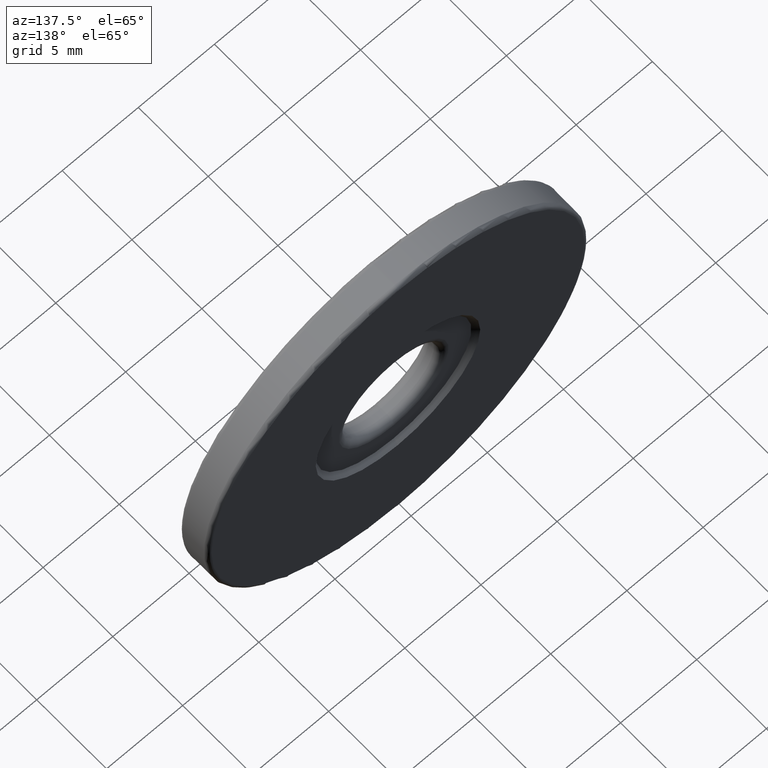
[diagram: clean part render]
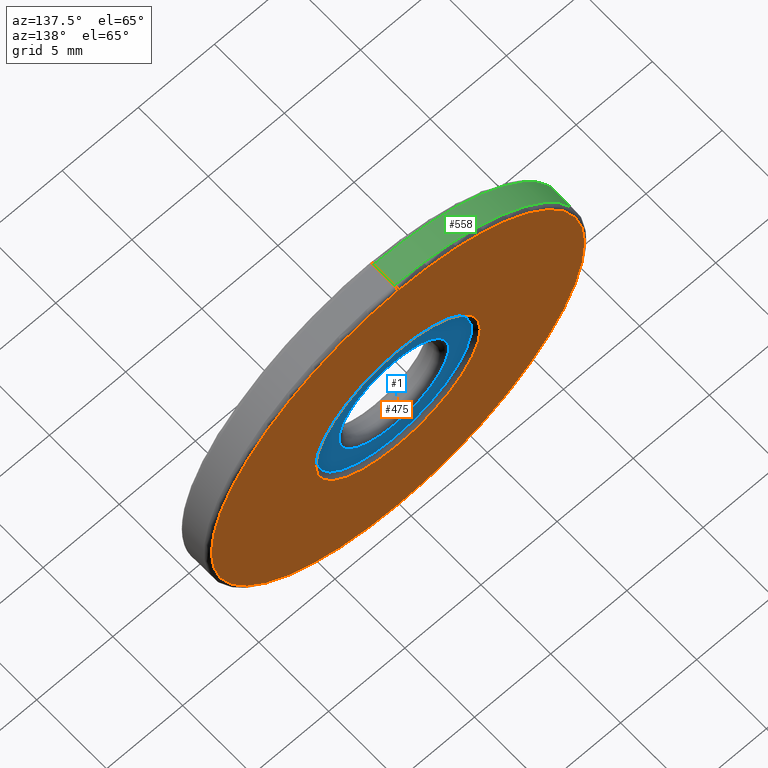
[diagram: same view with three faces highlighted in distinct colors, each labeled with its STEP entity id]
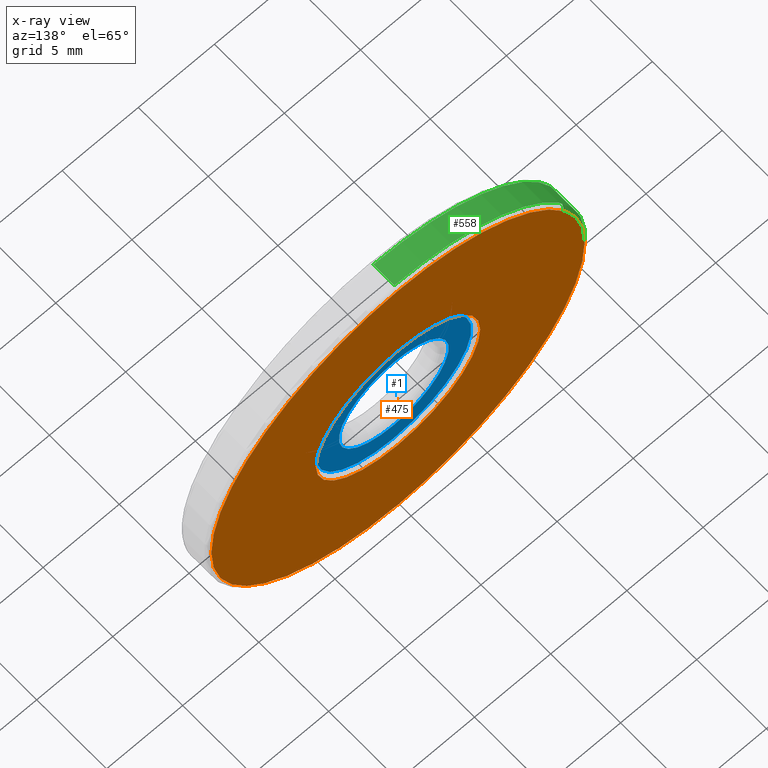
[diagram: x-ray of the same camera — body ghosted, the three highlighted faces saturated]
A machine part, auxiliary view with three faces highlighted in distinct colors.
The next image is the same camera in x-ray (body ghosted, the three faces saturated) — at least one of them is partly hidden behind the body in this view.
Their STEP definitions:

[orange] entity #475 — the highlighted planar face has unit normal (0, 1, 0).
#4 = AXIS2_PLACEMENT_3D ( 'NONE', #418, #551, #172 ) ;
#9 = FACE_BOUND ( 'NONE', #506, .T. ) ;
#13 = AXIS2_PLACEMENT_3D ( 'NONE', #128, #571, #295 ) ;
#26 = CARTESIAN_POINT ( 'NONE',  ( -4.682026255059963837, -0.5949759769982747581, 19.60000000000000142 ) ) ;
#78 = ORIENTED_EDGE ( 'NONE', *, *, #124, .T. ) ;
#79 = ORIENTED_EDGE ( 'NONE', *, *, #489, .T. ) ;
#103 = CARTESIAN_POINT ( 'NONE',  ( -4.682026255059964726, -0.5949759769982747581, 25.00000000000000000 ) ) ;
#124 = EDGE_CURVE ( 'NONE', #158, #284, #492, .T. ) ;
#128 = CARTESIAN_POINT ( 'NONE',  ( -4.682026255059964726, -0.5949759769982747581, 25.00000000000000000 ) ) ;
#151 = DIRECTION ( 'NONE',  ( -0.0000000000000000000, -1.000000000000000000, -0.0000000000000000000 ) ) ;
#158 = VERTEX_POINT ( 'NONE', #26 ) ;
#172 = DIRECTION ( 'NONE',  ( 0.0000000000000000000, -0.0000000000000000000, 1.000000000000000000 ) ) ;
#194 = PLANE ( 'NONE',  #4 ) ;
#200 = CARTESIAN_POINT ( 'NONE',  ( -4.682026255059962949, -0.5949759769982747581, 12.75000000000000178 ) ) ;
#210 = AXIS2_PLACEMENT_3D ( 'NONE', #471, #374, #464 ) ;
#231 = ORIENTED_EDGE ( 'NONE', *, *, #582, .T. ) ;
#284 = VERTEX_POINT ( 'NONE', #441 ) ;
#295 = DIRECTION ( 'NONE',  ( 0.0000000000000000000, 0.0000000000000000000, 1.000000000000000000 ) ) ;
#333 = AXIS2_PLACEMENT_3D ( 'NONE', #103, #151, #586 ) ;
#345 = AXIS2_PLACEMENT_3D ( 'NONE', #606, #453, #505 ) ;
#351 = CIRCLE ( 'NONE', #345, 12.25000000000000355 ) ;
#374 = DIRECTION ( 'NONE',  ( -0.0000000000000000000, -1.000000000000000000, -0.0000000000000000000 ) ) ;
#418 = CARTESIAN_POINT ( 'NONE',  ( -4.682026255059964726, -0.5949759769982747581, 25.00000000000000000 ) ) ;
#425 = EDGE_CURVE ( 'NONE', #502, #599, #548, .T. ) ;
#432 = FACE_OUTER_BOUND ( 'NONE', #465, .T. ) ;
#441 = CARTESIAN_POINT ( 'NONE',  ( -4.682026255059964726, -0.5949759769982747581, 30.39999999999999858 ) ) ;
#445 = CIRCLE ( 'NONE', #210, 5.399999999999998579 ) ;
#453 = DIRECTION ( 'NONE',  ( 0.0000000000000000000, 1.000000000000000000, 0.0000000000000000000 ) ) ;
#464 = DIRECTION ( 'NONE',  ( 0.0000000000000000000, 0.0000000000000000000, 1.000000000000000000 ) ) ;
#465 = EDGE_LOOP ( 'NONE', ( #490, #79 ) ) ;
#471 = CARTESIAN_POINT ( 'NONE',  ( -4.682026255059964726, -0.5949759769982747581, 25.00000000000000000 ) ) ;
#475 = ADVANCED_FACE ( 'NONE', ( #432, #9 ), #194, .T. ) ;
#489 = EDGE_CURVE ( 'NONE', #599, #502, #351, .T. ) ;
#490 = ORIENTED_EDGE ( 'NONE', *, *, #425, .T. ) ;
#492 = CIRCLE ( 'NONE', #333, 5.399999999999998579 ) ;
#502 = VERTEX_POINT ( 'NONE', #512 ) ;
#505 = DIRECTION ( 'NONE',  ( 0.0000000000000000000, 0.0000000000000000000, 1.000000000000000000 ) ) ;
#506 = EDGE_LOOP ( 'NONE', ( #231, #78 ) ) ;
#512 = CARTESIAN_POINT ( 'NONE',  ( -4.682026255059964726, -0.5949759769982747581, 37.25000000000000711 ) ) ;
#548 = CIRCLE ( 'NONE', #13, 12.25000000000000355 ) ;
#551 = DIRECTION ( 'NONE',  ( 0.0000000000000000000, 1.000000000000000000, 0.0000000000000000000 ) ) ;
#571 = DIRECTION ( 'NONE',  ( 0.0000000000000000000, 1.000000000000000000, 0.0000000000000000000 ) ) ;
#582 = EDGE_CURVE ( 'NONE', #284, #158, #445, .T. ) ;
#586 = DIRECTION ( 'NONE',  ( 0.0000000000000000000, 0.0000000000000000000, 1.000000000000000000 ) ) ;
#599 = VERTEX_POINT ( 'NONE', #200 ) ;
#606 = CARTESIAN_POINT ( 'NONE',  ( -4.682026255059964726, -0.5949759769982747581, 25.00000000000000000 ) ) ;

[blue] entity #1 — the highlighted planar face has unit normal (0, 1, 0).
#1 = ADVANCED_FACE ( 'NONE', ( #565, #130 ), #326, .T. ) ;
#7 = DIRECTION ( 'NONE',  ( 0.0000000000000000000, 0.0000000000000000000, 1.000000000000000000 ) ) ;
#27 = ORIENTED_EDGE ( 'NONE', *, *, #446, .T. ) ;
#39 = DIRECTION ( 'NONE',  ( -0.0000000000000000000, -1.000000000000000000, -0.0000000000000000000 ) ) ;
#57 = DIRECTION ( 'NONE',  ( -0.0000000000000000000, -1.000000000000000000, -0.0000000000000000000 ) ) ;
#75 = ORIENTED_EDGE ( 'NONE', *, *, #360, .T. ) ;
#88 = DIRECTION ( 'NONE',  ( 0.0000000000000000000, 1.000000000000000000, 0.0000000000000000000 ) ) ;
#91 = DIRECTION ( 'NONE',  ( 0.0000000000000000000, 1.000000000000000000, 0.0000000000000000000 ) ) ;
#94 = CIRCLE ( 'NONE', #274, 3.599999999999999201 ) ;
#130 = FACE_OUTER_BOUND ( 'NONE', #314, .T. ) ;
#134 = DIRECTION ( 'NONE',  ( 0.0000000000000000000, 0.0000000000000000000, 1.000000000000000000 ) ) ;
#137 = CARTESIAN_POINT ( 'NONE',  ( -4.682026255059963837, -0.8949759769982746915, 21.40000000000000213 ) ) ;
#138 = AXIS2_PLACEMENT_3D ( 'NONE', #520, #88, #278 ) ;
#144 = VERTEX_POINT ( 'NONE', #241 ) ;
#145 = CARTESIAN_POINT ( 'NONE',  ( -4.682026255059964726, -0.8949759769982746915, 30.10000000000000142 ) ) ;
#168 = CARTESIAN_POINT ( 'NONE',  ( -4.682026255059964726, -0.8949759769982746915, 28.60000000000000142 ) ) ;
#181 = CARTESIAN_POINT ( 'NONE',  ( -4.682026255059964726, -0.8949759769982746915, 25.00000000000000000 ) ) ;
#186 = EDGE_LOOP ( 'NONE', ( #27, #359 ) ) ;
#193 = VERTEX_POINT ( 'NONE', #168 ) ;
#198 = AXIS2_PLACEMENT_3D ( 'NONE', #523, #91, #281 ) ;
#241 = CARTESIAN_POINT ( 'NONE',  ( -4.682026255059963837, -0.8949759769982746915, 19.90000000000000213 ) ) ;
#274 = AXIS2_PLACEMENT_3D ( 'NONE', #484, #57, #458 ) ;
#278 = DIRECTION ( 'NONE',  ( 0.0000000000000000000, -0.0000000000000000000, 1.000000000000000000 ) ) ;
#281 = DIRECTION ( 'NONE',  ( 0.0000000000000000000, 0.0000000000000000000, 1.000000000000000000 ) ) ;
#314 = EDGE_LOOP ( 'NONE', ( #462, #75 ) ) ;
#326 = PLANE ( 'NONE',  #138 ) ;
#355 = EDGE_CURVE ( 'NONE', #437, #193, #495, .T. ) ;
#359 = ORIENTED_EDGE ( 'NONE', *, *, #355, .T. ) ;
#360 = EDGE_CURVE ( 'NONE', #144, #383, #517, .T. ) ;
#383 = VERTEX_POINT ( 'NONE', #145 ) ;
#437 = VERTEX_POINT ( 'NONE', #137 ) ;
#438 = AXIS2_PLACEMENT_3D ( 'NONE', #181, #39, #134 ) ;
#442 = EDGE_CURVE ( 'NONE', #383, #144, #583, .T. ) ;
#446 = EDGE_CURVE ( 'NONE', #193, #437, #94, .T. ) ;
#458 = DIRECTION ( 'NONE',  ( 0.0000000000000000000, 0.0000000000000000000, 1.000000000000000000 ) ) ;
#462 = ORIENTED_EDGE ( 'NONE', *, *, #442, .T. ) ;
#484 = CARTESIAN_POINT ( 'NONE',  ( -4.682026255059964726, -0.8949759769982746915, 25.00000000000000000 ) ) ;
#495 = CIRCLE ( 'NONE', #438, 3.599999999999999201 ) ;
#514 = CARTESIAN_POINT ( 'NONE',  ( -4.682026255059964726, -0.8949759769982746915, 25.00000000000000000 ) ) ;
#517 = CIRCLE ( 'NONE', #525, 5.100000000000000533 ) ;
#520 = CARTESIAN_POINT ( 'NONE',  ( -4.682026255059964726, -0.8949759769982746915, 25.00000000000000000 ) ) ;
#521 = DIRECTION ( 'NONE',  ( 0.0000000000000000000, 1.000000000000000000, 0.0000000000000000000 ) ) ;
#523 = CARTESIAN_POINT ( 'NONE',  ( -4.682026255059964726, -0.8949759769982746915, 25.00000000000000000 ) ) ;
#525 = AXIS2_PLACEMENT_3D ( 'NONE', #514, #521, #7 ) ;
#565 = FACE_BOUND ( 'NONE', #186, .T. ) ;
#583 = CIRCLE ( 'NONE', #198, 5.100000000000000533 ) ;

[green] entity #558 — the highlighted cylindrical surface (partial cylindrical patch) has radius 12.5 mm, axis along (-0, -1, -0).
#23 = EDGE_LOOP ( 'NONE', ( #112, #280, #35, #330 ) ) ;
#33 = CARTESIAN_POINT ( 'NONE',  ( -4.682026255059962949, -0.8449759769982747581, 12.50000000000000000 ) ) ;
#35 = ORIENTED_EDGE ( 'NONE', *, *, #38, .T. ) ;
#38 = EDGE_CURVE ( 'NONE', #213, #472, #584, .T. ) ;
#43 = VECTOR ( 'NONE', #439, 1000.000000000000000 ) ;
#61 = EDGE_CURVE ( 'NONE', #317, #269, #291, .T. ) ;
#73 = CIRCLE ( 'NONE', #479, 12.50000000000000355 ) ;
#83 = FACE_OUTER_BOUND ( 'NONE', #23, .T. ) ;
#98 = AXIS2_PLACEMENT_3D ( 'NONE', #159, #162, #115 ) ;
#111 = DIRECTION ( 'NONE',  ( 0.0000000000000000000, 0.0000000000000000000, 1.000000000000000000 ) ) ;
#112 = ORIENTED_EDGE ( 'NONE', *, *, #61, .F. ) ;
#115 = DIRECTION ( 'NONE',  ( 0.0000000000000000000, 0.0000000000000000000, 1.000000000000000000 ) ) ;
#149 = CARTESIAN_POINT ( 'NONE',  ( -4.682026255059964726, -0.5949759769982747581, 12.50000000000000000 ) ) ;
#150 = EDGE_CURVE ( 'NONE', #472, #269, #73, .T. ) ;
#159 = CARTESIAN_POINT ( 'NONE',  ( -4.682026255059964726, -0.8449759769982747581, 25.00000000000000000 ) ) ;
#162 = DIRECTION ( 'NONE',  ( -0.0000000000000000000, -1.000000000000000000, -0.0000000000000000000 ) ) ;
#174 = CARTESIAN_POINT ( 'NONE',  ( -4.682026255059964726, -0.8449759769982747581, 37.50000000000000711 ) ) ;
#205 = EDGE_CURVE ( 'NONE', #317, #213, #371, .T. ) ;
#213 = VERTEX_POINT ( 'NONE', #33 ) ;
#227 = CARTESIAN_POINT ( 'NONE',  ( -4.682026255059964726, -0.5949759769982747581, 25.00000000000000000 ) ) ;
#245 = CARTESIAN_POINT ( 'NONE',  ( -4.682026255059964726, -2.344975976998274980, 12.50000000000000000 ) ) ;
#269 = VERTEX_POINT ( 'NONE', #449 ) ;
#280 = ORIENTED_EDGE ( 'NONE', *, *, #205, .T. ) ;
#291 = LINE ( 'NONE', #481, #455 ) ;
#297 = DIRECTION ( 'NONE',  ( -0.0000000000000000000, -1.000000000000000000, -0.0000000000000000000 ) ) ;
#317 = VERTEX_POINT ( 'NONE', #174 ) ;
#325 = CYLINDRICAL_SURFACE ( 'NONE', #482, 12.50000000000000000 ) ;
#330 = ORIENTED_EDGE ( 'NONE', *, *, #150, .T. ) ;
#339 = DIRECTION ( 'NONE',  ( 0.0000000000000000000, 1.000000000000000000, 0.0000000000000000000 ) ) ;
#371 = CIRCLE ( 'NONE', #98, 12.50000000000000355 ) ;
#439 = DIRECTION ( 'NONE',  ( -0.0000000000000000000, -1.000000000000000000, -0.0000000000000000000 ) ) ;
#449 = CARTESIAN_POINT ( 'NONE',  ( -4.682026255059962949, -2.344975976998274980, 37.50000000000000711 ) ) ;
#455 = VECTOR ( 'NONE', #297, 1000.000000000000000 ) ;
#472 = VERTEX_POINT ( 'NONE', #245 ) ;
#477 = DIRECTION ( 'NONE',  ( -0.0000000000000000000, -1.000000000000000000, -0.0000000000000000000 ) ) ;
#479 = AXIS2_PLACEMENT_3D ( 'NONE', #545, #339, #111 ) ;
#480 = DIRECTION ( 'NONE',  ( 0.0000000000000000000, 0.0000000000000000000, -1.000000000000000000 ) ) ;
#481 = CARTESIAN_POINT ( 'NONE',  ( -4.682026255059962949, -0.5949759769982747581, 37.50000000000000711 ) ) ;
#482 = AXIS2_PLACEMENT_3D ( 'NONE', #227, #477, #480 ) ;
#545 = CARTESIAN_POINT ( 'NONE',  ( -4.682026255059964726, -2.344975976998274980, 25.00000000000000000 ) ) ;
#558 = ADVANCED_FACE ( 'NONE', ( #83 ), #325, .T. ) ;
#584 = LINE ( 'NONE', #149, #43 ) ;